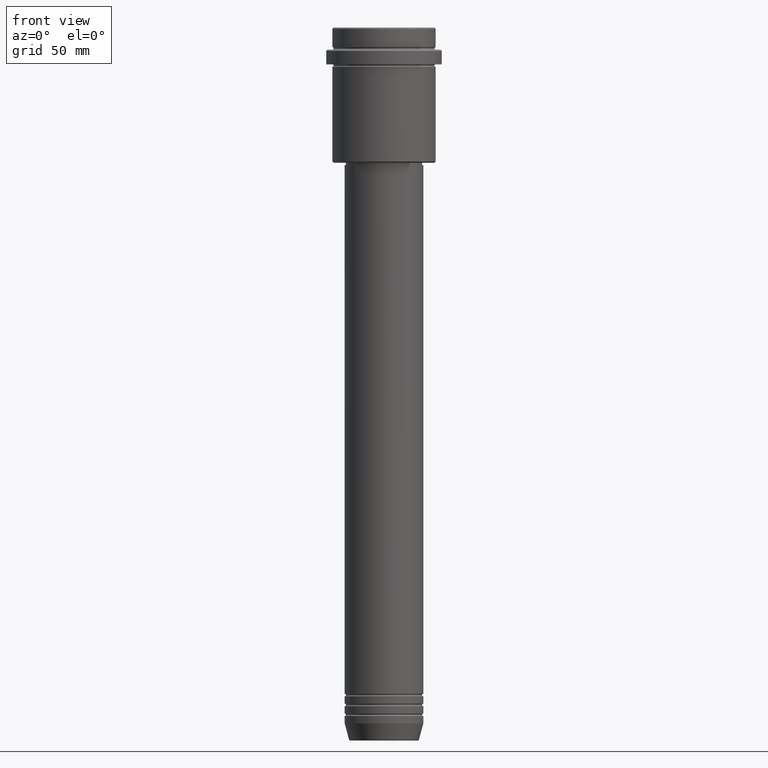
[diagram: clean part render]
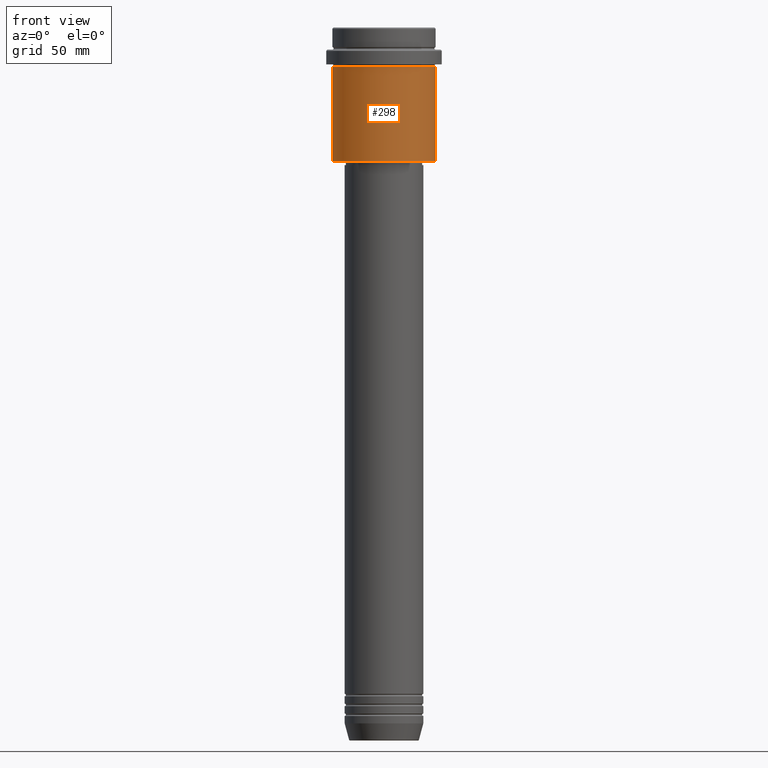
[diagram: same view with one face highlighted and labeled with its STEP entity id]
A machine part, front view. The second image highlights one B-rep face of the part: STEP entity #298.
In plain terms, the highlighted cylindrical surface (partial cylindrical patch) has radius 21 mm, axis along (-0, -0, 1).
Its self-contained STEP definition (entity closure, byte-faithful):
#44 = DIRECTION ( 'NONE',  ( 1.000000000000000000, 0.000000000000000000, 0.000000000000000000 ) ) ;
#94 = CIRCLE ( 'NONE', #944, 20.99999999999999645 ) ;
#102 = DIRECTION ( 'NONE',  ( 1.000000000000000000, 0.000000000000000000, 0.000000000000000000 ) ) ;
#108 = VERTEX_POINT ( 'NONE', #1083 ) ;
#115 = VECTOR ( 'NONE', #448, 1000.000000000000000 ) ;
#132 = LINE ( 'NONE', #581, #115 ) ;
#182 = LINE ( 'NONE', #954, #663 ) ;
#198 = CARTESIAN_POINT ( 'NONE',  ( 20.99999999999999645, 0.000000000000000000, -16.00000000000000355 ) ) ;
#283 = CARTESIAN_POINT ( 'NONE',  ( -20.99999999999999645, 2.571758278209441267E-15, -54.49999999999996447 ) ) ;
#290 = DIRECTION ( 'NONE',  ( -0.000000000000000000, -0.000000000000000000, 1.000000000000000000 ) ) ;
#298 = ADVANCED_FACE ( 'NONE', ( #853 ), #859, .T. ) ;
#302 = VERTEX_POINT ( 'NONE', #283 ) ;
#341 = DIRECTION ( 'NONE',  ( -0.000000000000000000, -0.000000000000000000, 1.000000000000000000 ) ) ;
#348 = AXIS2_PLACEMENT_3D ( 'NONE', #660, #1277, #102 ) ;
#355 = CARTESIAN_POINT ( 'NONE',  ( -20.99999999999999645, 2.571758278209441267E-15, -16.00000000000000355 ) ) ;
#396 = CARTESIAN_POINT ( 'NONE',  ( 0.000000000000000000, 0.000000000000000000, 0.000000000000000000 ) ) ;
#448 = DIRECTION ( 'NONE',  ( -0.000000000000000000, -0.000000000000000000, 1.000000000000000000 ) ) ;
#450 = ORIENTED_EDGE ( 'NONE', *, *, #528, .F. ) ;
#528 = EDGE_CURVE ( 'NONE', #566, #1214, #659, .T. ) ;
#531 = DIRECTION ( 'NONE',  ( -1.000000000000000000, 0.000000000000000000, 0.000000000000000000 ) ) ;
#566 = VERTEX_POINT ( 'NONE', #355 ) ;
#581 = CARTESIAN_POINT ( 'NONE',  ( -20.99999999999999645, 2.571758278209441267E-15, 0.000000000000000000 ) ) ;
#659 = CIRCLE ( 'NONE', #348, 20.99999999999999645 ) ;
#660 = CARTESIAN_POINT ( 'NONE',  ( 0.000000000000000000, 0.000000000000000000, -16.00000000000000355 ) ) ;
#663 = VECTOR ( 'NONE', #290, 1000.000000000000000 ) ;
#774 = EDGE_CURVE ( 'NONE', #302, #566, #132, .T. ) ;
#828 = ORIENTED_EDGE ( 'NONE', *, *, #866, .T. ) ;
#853 = FACE_OUTER_BOUND ( 'NONE', #913, .T. ) ;
#859 = CYLINDRICAL_SURFACE ( 'NONE', #964, 20.99999999999999645 ) ;
#866 = EDGE_CURVE ( 'NONE', #108, #1214, #182, .T. ) ;
#913 = EDGE_LOOP ( 'NONE', ( #1192, #1300, #828, #450 ) ) ;
#944 = AXIS2_PLACEMENT_3D ( 'NONE', #1058, #341, #531 ) ;
#954 = CARTESIAN_POINT ( 'NONE',  ( 20.99999999999999645, 0.000000000000000000, 0.000000000000000000 ) ) ;
#964 = AXIS2_PLACEMENT_3D ( 'NONE', #396, #1118, #44 ) ;
#972 = EDGE_CURVE ( 'NONE', #302, #108, #94, .T. ) ;
#1058 = CARTESIAN_POINT ( 'NONE',  ( 0.000000000000000000, 0.000000000000000000, -54.49999999999996447 ) ) ;
#1083 = CARTESIAN_POINT ( 'NONE',  ( 20.99999999999999645, 0.000000000000000000, -54.49999999999996447 ) ) ;
#1118 = DIRECTION ( 'NONE',  ( -0.000000000000000000, -0.000000000000000000, 1.000000000000000000 ) ) ;
#1192 = ORIENTED_EDGE ( 'NONE', *, *, #774, .F. ) ;
#1214 = VERTEX_POINT ( 'NONE', #198 ) ;
#1277 = DIRECTION ( 'NONE',  ( -0.000000000000000000, -0.000000000000000000, 1.000000000000000000 ) ) ;
#1300 = ORIENTED_EDGE ( 'NONE', *, *, #972, .T. ) ;